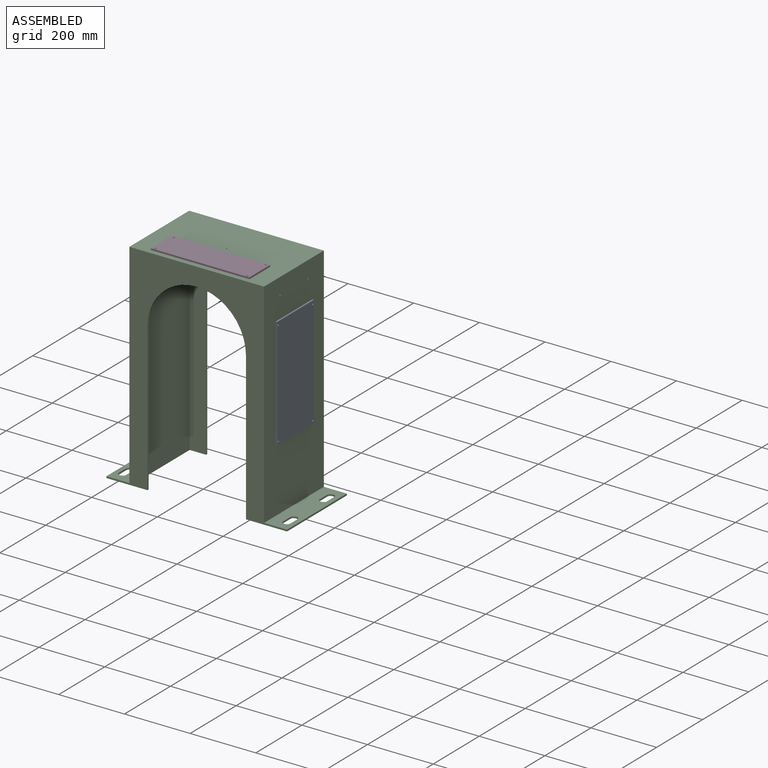
[diagram: assembled view]
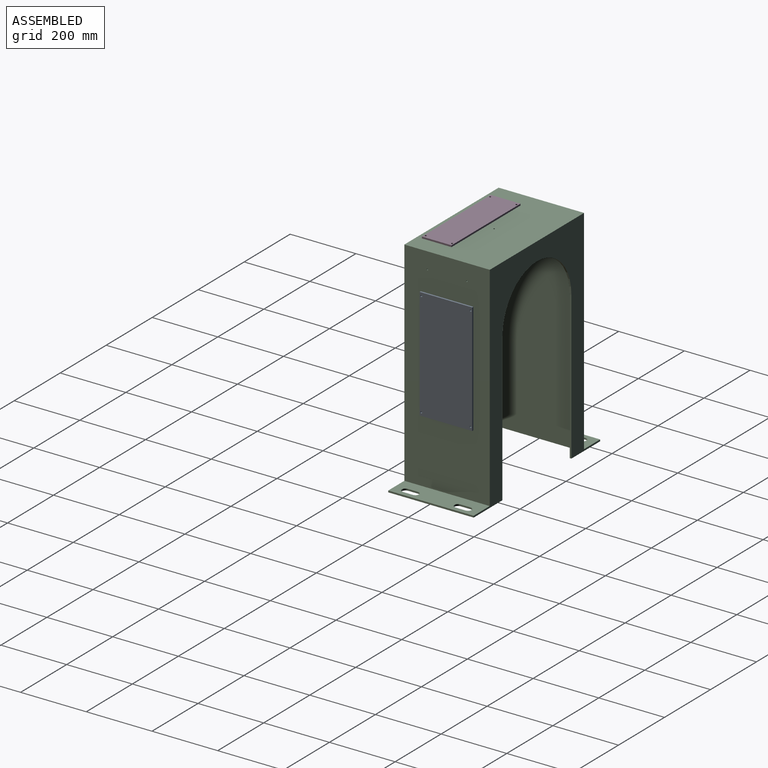
[diagram: assembled view, second angle]
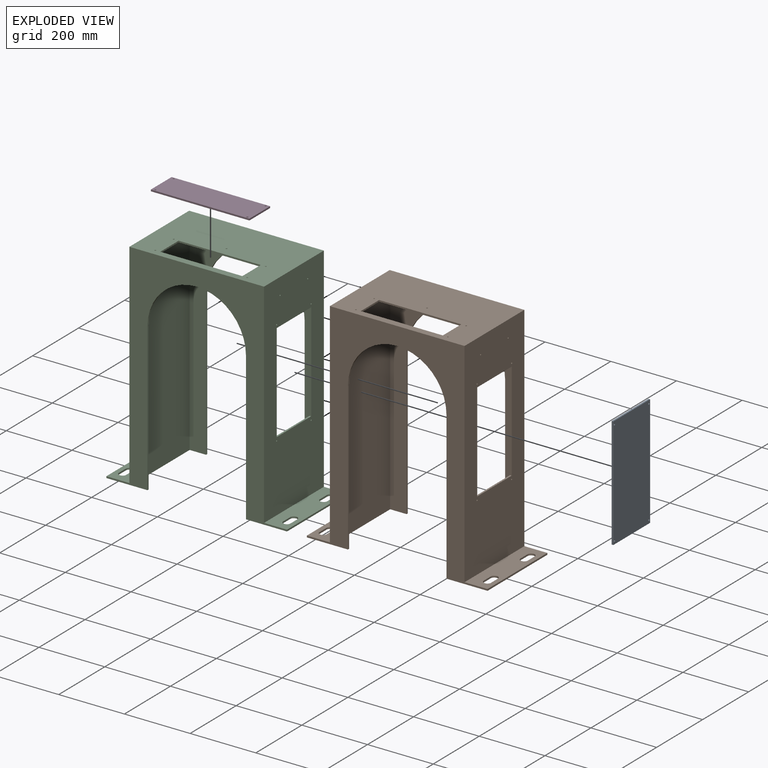
[diagram: exploded view]
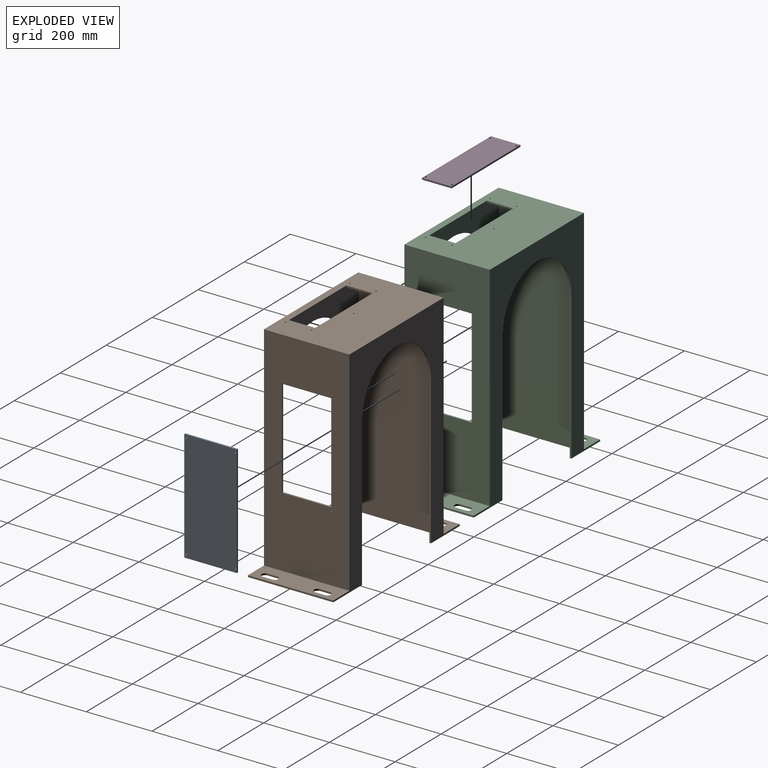
[diagram: exploded view, second angle]
ASSEMBLY  parts=4 mates=2
PART A: 10 faces, bbox 340x160x5 mm
  f0: plane 340x5mm, normal (0,-1,0), area 1700mm2, adj f1,f3,f4,f5
  f1: plane 160x5mm, normal (1,0,0), area 800mm2, adj f0,f2,f4,f5
  f2: plane 340x5mm, normal (0,1,0), area 1700mm2, adj f1,f3,f4,f5
  f3: plane 160x5mm, normal (-1,0,0), area 800mm2, adj f0,f2,f4,f5
  f4: plane 340x160mm, normal (0,0,-1), area 54305mm2, adj f0,f1,f2,f3,f6,f7,f8,f9
  f5: plane 340x160mm, normal (0,0,1), area 54305mm2, adj f0,f1,f2,f3,f6,f7,f8,f9
  f6: cylinder r=2.75mm len=5.5mm, axis (0,0,1), area 86.4mm2, adj f4,f5
  f7: cylinder r=2.75mm len=5.5mm, axis (0,0,1), area 86.4mm2, adj f4,f5
  f8: cylinder r=2.75mm len=5.5mm, axis (0,0,1), area 86.4mm2, adj f4,f5
  f9: cylinder r=2.75mm len=5.5mm, axis (0,0,1), area 86.4mm2, adj f4,f5
PART B: 59 faces, bbox 550x260x655 mm
  f0: plane 650x250mm, normal (-1,0,0), area 117416.9mm2, adj f4,f9,f28,f37,f43,f44,f45,f46
  f1: plane 650x260mm, normal (1,0,0), area 123916.9mm2, adj f2,f5,f32,f36,f43,f44,f45,f46
  f2: plane 410x260mm, normal (0,0,1), area 86530.7mm2, adj f1,f11,f32,f36,f38,f39,f40,f41
  f3: plane 260x125mm, normal (0,0,-1), area 17919.7mm2, adj f7,f8,f12,f13,f14,f15,f16,f17
  f4: plane 260x125mm, normal (0,0,-1), area 17919.7mm2, adj f0,f10,f20,f21,f22,f23,f24,f25
  f5: plane 260x70mm, normal (0,0,1), area 16119.7mm2, adj f1,f10,f20,f21,f22,f23,f24,f25
  f6: plane 260x70mm, normal (0,0,1), area 16119.7mm2, adj f7,f11,f12,f13,f14,f15,f16,f17
  f7: plane 260x5mm, normal (-1,0,0), area 1300mm2, adj f3,f6,f32,f36
  f8: plane 650x250mm, normal (1,0,0), area 162472.3mm2, adj f3,f9,f28,f37,f49,f50
  f9: plane 400x250mm, normal (0,0,-1), area 79930.7mm2, adj f0,f8,f28,f37,f38,f39,f40,f41
  f10: plane 260x5mm, normal (1,0,0), area 1300mm2, adj f4,f5,f32,f36
  f11: plane 650x260mm, normal (-1,0,0), area 168972.3mm2, adj f2,f6,f32,f36,f49,f50
  f12: cylinder r=11mm len=22mm, axis (0,0,1), area 172.8mm2, adj f3,f6,f13,f15
  f13: plane 30x5mm, normal (1,0,0), area 150mm2, adj f3,f6,f12,f14
  f14: cylinder r=11mm len=22mm, axis (0,0,1), area 172.8mm2, adj f3,f6,f13,f15
  f15: plane 30x5mm, normal (-1,0,0), area 150mm2, adj f3,f6,f12,f14
  f16: plane 30x5mm, normal (-1,0,0), area 150mm2, adj f3,f6,f17,f19
  f17: cylinder r=11mm len=22mm, axis (0,0,1), area 172.8mm2, adj f3,f6,f16,f18
  f18: plane 30x5mm, normal (1,0,0), area 150mm2, adj f3,f6,f17,f19
  f19: cylinder r=11mm len=22mm, axis (0,0,1), area 172.8mm2, adj f3,f6,f16,f18
  f20: cylinder r=11mm len=22mm, axis (0,0,1), area 172.8mm2, adj f4,f5,f21,f23
  f21: plane 30x5mm, normal (-1,0,0), area 150mm2, adj f4,f5,f20,f22
  f22: cylinder r=11mm len=22mm, axis (0,0,1), area 172.8mm2, adj f4,f5,f21,f23
  f23: plane 30x5mm, normal (1,0,0), area 150mm2, adj f4,f5,f20,f22
  f24: cylinder r=11mm len=22mm, axis (0,0,1), area 172.8mm2, adj f4,f5,f25,f27
  f25: plane 30x5mm, normal (-1,0,0), area 150mm2, adj f4,f5,f24,f26
  f26: cylinder r=11mm len=22mm, axis (0,0,1), area 172.8mm2, adj f4,f5,f25,f27
  f27: plane 30x5mm, normal (1,0,0), area 150mm2, adj f4,f5,f24,f26
  f28: plane 650x400mm, normal (0,-1,0), area 89657.1mm2, adj f0,f3,f4,f8,f9,f29,f30,f31
  f29: plane 450x5mm, normal (-1,0,0), area 2250mm2, adj f4,f28,f30,f32
  f30: cylinder r=150mm len=300mm, axis (0,-1,0), area 2356.2mm2, adj f28,f29,f31,f32
  f31: plane 450x5mm, normal (1,0,0), area 2250mm2, adj f3,f28,f30,f32
  f32: plane 655x550mm, normal (0,1,0), area 98907.1mm2, adj f1,f2,f3,f4,f5,f6,f7,f10
  f33: plane 450x5mm, normal (1,0,0), area 2250mm2, adj f3,f34,f36,f37
  f34: cylinder r=150mm len=300mm, axis (0,1,0), area 2356.2mm2, adj f33,f35,f36,f37
  f35: plane 450x5mm, normal (-1,0,0), area 2250mm2, adj f4,f34,f36,f37
  f36: plane 655x550mm, normal (0,-1,0), area 98907.1mm2, adj f1,f2,f3,f4,f5,f6,f7,f10
  f37: plane 650x400mm, normal (0,1,0), area 89657.1mm2, adj f0,f3,f4,f8,f9,f33,f34,f35
  f38: plane 250x5mm, normal (0,-1,0), area 1250mm2, adj f2,f9,f39,f41
  f39: plane 80x5mm, normal (1,0,0), area 400mm2, adj f2,f9,f38,f40
  f40: plane 250x5mm, normal (0,1,0), area 1250mm2, adj f2,f9,f39,f41
  f41: plane 80x5mm, normal (-1,0,0), area 400mm2, adj f2,f9,f38,f40
  f42: cylinder r=2.1mm len=5mm, axis (0,0,1), area 66mm2, adj f2,f9
  f43: plane 150x5mm, normal (0,0,1), area 750mm2, adj f0,f1,f44,f46
  f44: plane 300x5mm, normal (0,-1,0), area 1500mm2, adj f0,f1,f43,f45
  f45: plane 150x5mm, normal (0,0,-1), area 750mm2, adj f0,f1,f44,f46
  f46: plane 300x5mm, normal (0,1,0), area 1500mm2, adj f0,f1,f43,f45
  f47: cylinder r=2.1mm len=5mm, axis (1,0,0), area 66mm2, adj f0,f1
  f48: cylinder r=2.1mm len=5mm, axis (1,0,0), area 66mm2, adj f0,f1
  f49: cylinder r=2.1mm len=5mm, axis (-1,0,0), area 66mm2, adj f8,f11
  f50: cylinder r=2.1mm len=5mm, axis (-1,0,0), area 66mm2, adj f8,f11
  f51: cylinder r=2.1mm len=5mm, axis (0,0,1), area 66mm2, adj f2,f9
  f52: cylinder r=2.1mm len=5mm, axis (0,0,1), area 66mm2, adj f2,f9
  f53: cylinder r=2.1mm len=5mm, axis (0,0,1), area 66mm2, adj f2,f9
  f54: cylinder r=2.1mm len=5mm, axis (0,0,1), area 66mm2, adj f2,f9
  f55: cylinder r=2.1mm len=5mm, axis (1,0,0), area 66mm2, adj f0,f1
  f56: cylinder r=2.1mm len=5mm, axis (1,0,0), area 66mm2, adj f0,f1
  f57: cylinder r=2.1mm len=5mm, axis (1,0,0), area 66mm2, adj f0,f1
  f58: cylinder r=2.1mm len=5mm, axis (1,0,0), area 66mm2, adj f0,f1
PART C: same geometry as B
PART D: 10 faces, bbox 300x90x5 mm
  f0: plane 300x5mm, normal (0,-1,0), area 1500mm2, adj f1,f3,f4,f5
  f1: plane 90x5mm, normal (1,0,0), area 450mm2, adj f0,f2,f4,f5
  f2: plane 300x5mm, normal (0,1,0), area 1500mm2, adj f1,f3,f4,f5
  f3: plane 90x5mm, normal (-1,0,0), area 450mm2, adj f0,f2,f4,f5
  f4: plane 300x90mm, normal (0,0,-1), area 26905mm2, adj f0,f1,f2,f3,f6,f7,f8,f9
  f5: plane 300x90mm, normal (0,0,1), area 26905mm2, adj f0,f1,f2,f3,f6,f7,f8,f9
  f6: cylinder r=2.75mm len=5.5mm, axis (0,0,1), area 86.4mm2, adj f4,f5
  f7: cylinder r=2.75mm len=5.5mm, axis (0,0,1), area 86.4mm2, adj f4,f5
  f8: cylinder r=2.75mm len=5.5mm, axis (0,0,1), area 86.4mm2, adj f4,f5
  f9: cylinder r=2.75mm len=5.5mm, axis (0,0,1), area 86.4mm2, adj f4,f5
PLACE A rot(axis=(0,-1,0),90deg) t=(61.25,-84.25,142.91)mm
PLACE B t=(-374.58,145.9,-134.66)mm
PLACE C t=(-374.58,145.9,-134.66)mm
PLACE D t=(-199.17,-119.25,488.34)mm
MATE pin_slot A.f8 <-> B.f56  axis (-1,0,0) through (61.25,95.9,358.34)mm
MATE pin_slot D.f9 <-> B.f54  axis (0,0,-1) through (-283.75,-89.1,483.34)mm
